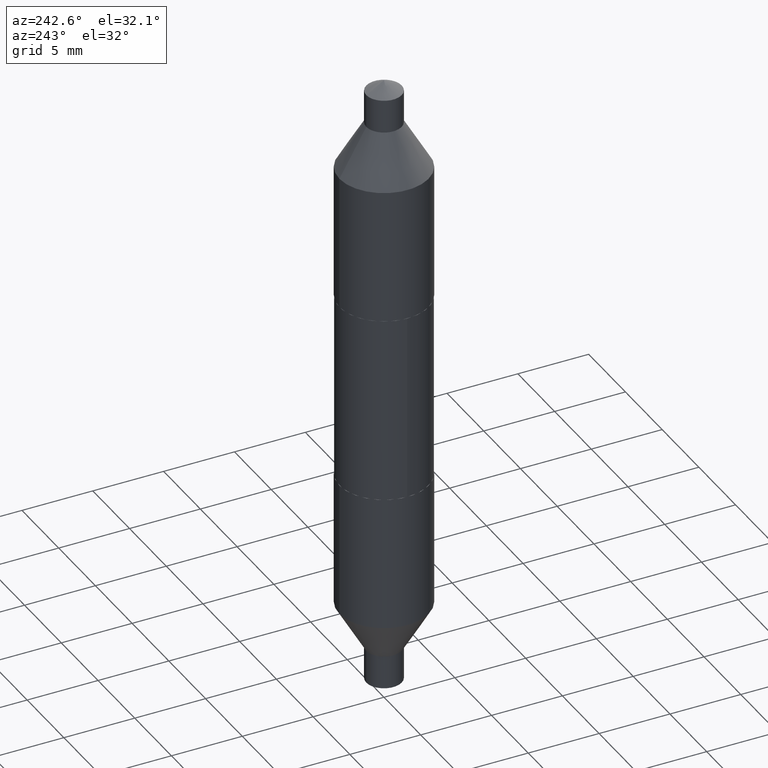
[diagram: clean part render]
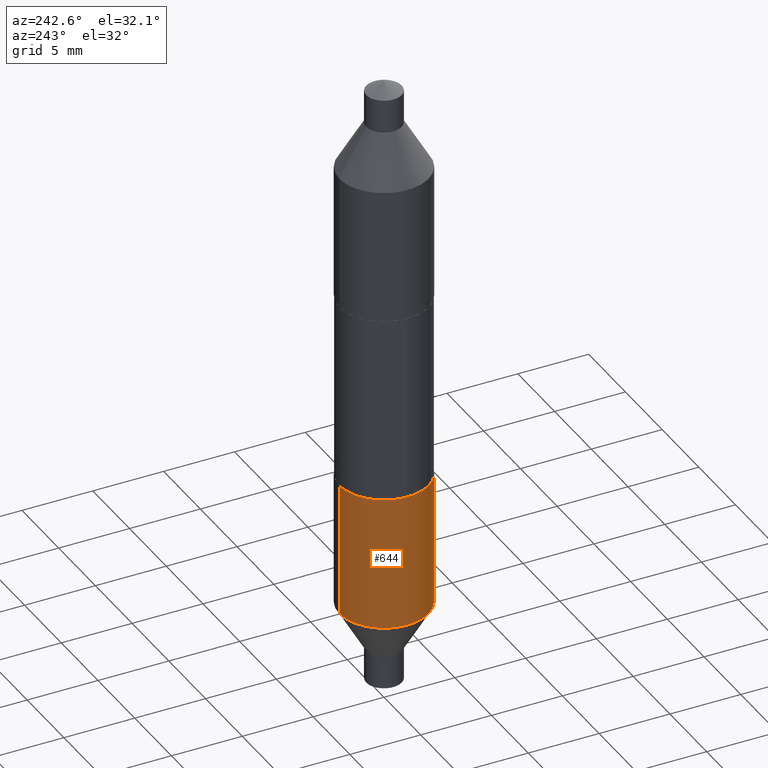
[diagram: same view with one face highlighted and labeled with its STEP entity id]
A machine part, auxiliary view. The second image highlights one B-rep face of the part: STEP entity #644.
In plain terms, the highlighted cylindrical surface (partial cylindrical patch) has radius 3.1496 mm, axis along (-0, 0, 1).
Its self-contained STEP definition (entity closure, byte-faithful):
#7 = AXIS2_PLACEMENT_3D ( 'NONE', #625, #146, #258 ) ;
#12 = DIRECTION ( 'NONE',  ( -2.431786145558266380E-29, 3.511075687629503585E-15, 1.000000000000000000 ) ) ;
#30 = DIRECTION ( 'NONE',  ( -2.431786145558266380E-29, 3.511075687629503191E-15, 1.000000000000000000 ) ) ;
#38 = EDGE_LOOP ( 'NONE', ( #475, #91, #648, #485 ) ) ;
#77 = CARTESIAN_POINT ( 'NONE',  ( 8.810729923425398042E-16, 0.1239999999999990971, -0.2600000000000004530 ) ) ;
#87 = DIRECTION ( 'NONE',  ( -6.982962677686265922E-15, -1.000000000000000000, 3.304654831045475864E-15 ) ) ;
#88 = DIRECTION ( 'NONE',  ( -6.982962677686265922E-15, -1.000000000000000000, 3.580042733632603487E-15 ) ) ;
#91 = ORIENTED_EDGE ( 'NONE', *, *, #225, .T. ) ;
#119 = EDGE_CURVE ( 'NONE', #167, #498, #568, .T. ) ;
#146 = DIRECTION ( 'NONE',  ( -2.431786145558266380E-29, 3.511075687629503191E-15, 1.000000000000000000 ) ) ;
#156 = FACE_OUTER_BOUND ( 'NONE', #38, .T. ) ;
#167 = VERTEX_POINT ( 'NONE', #630 ) ;
#180 = CIRCLE ( 'NONE', #659, 0.1240000000000001379 ) ;
#186 = AXIS2_PLACEMENT_3D ( 'NONE', #627, #30, #88 ) ;
#225 = EDGE_CURVE ( 'NONE', #167, #331, #180, .T. ) ;
#258 = DIRECTION ( 'NONE',  ( -6.982962677686265922E-15, -1.000000000000000000, 3.580042733632601120E-15 ) ) ;
#322 = CARTESIAN_POINT ( 'NONE',  ( -8.658873720330824348E-16, -0.1240000000000023583, -0.6334425995938456344 ) ) ;
#331 = VERTEX_POINT ( 'NONE', #322 ) ;
#336 = CARTESIAN_POINT ( 'NONE',  ( -8.658873720330911123E-16, -0.1240000000000009706, -0.2599999999999995093 ) ) ;
#340 = LINE ( 'NONE', #336, #569 ) ;
#360 = DIRECTION ( 'NONE',  ( -2.431786145558266380E-29, 3.511075687629503191E-15, 1.000000000000000000 ) ) ;
#421 = CIRCLE ( 'NONE', #186, 0.1239999999999999991 ) ;
#465 = DIRECTION ( 'NONE',  ( -2.431786145558266380E-29, 3.511075687629503585E-15, 1.000000000000000000 ) ) ;
#468 = CARTESIAN_POINT ( 'NONE',  ( 1.543954429461713444E-29, -2.218970380258330031E-15, -0.6334425995938459675 ) ) ;
#472 = EDGE_CURVE ( 'NONE', #331, #700, #340, .T. ) ;
#474 = CYLINDRICAL_SURFACE ( 'NONE', #7, 0.1240000000000000685 ) ;
#475 = ORIENTED_EDGE ( 'NONE', *, *, #119, .F. ) ;
#485 = ORIENTED_EDGE ( 'NONE', *, *, #684, .F. ) ;
#498 = VERTEX_POINT ( 'NONE', #77 ) ;
#505 = CARTESIAN_POINT ( 'NONE',  ( 8.810729923425308309E-16, 0.1239999999999991526, -0.2600000000000003975 ) ) ;
#516 = VECTOR ( 'NONE', #465, 39.37007874015748143 ) ;
#522 = CARTESIAN_POINT ( 'NONE',  ( -8.658873720330906192E-16, -0.1240000000000009012, -0.2599999999999995648 ) ) ;
#568 = LINE ( 'NONE', #505, #516 ) ;
#569 = VECTOR ( 'NONE', #12, 39.37007874015748143 ) ;
#625 = CARTESIAN_POINT ( 'NONE',  ( 6.358218896081354143E-30, -9.077851480992177489E-16, -0.2599999999999999534 ) ) ;
#627 = CARTESIAN_POINT ( 'NONE',  ( 6.358218896081355544E-30, -9.077851480992177489E-16, -0.2600000000000000089 ) ) ;
#630 = CARTESIAN_POINT ( 'NONE',  ( 8.810729923425355640E-16, 0.1239999999999979174, -0.6334425995938464116 ) ) ;
#644 = ADVANCED_FACE ( 'NONE', ( #156 ), #474, .T. ) ;
#648 = ORIENTED_EDGE ( 'NONE', *, *, #472, .T. ) ;
#659 = AXIS2_PLACEMENT_3D ( 'NONE', #468, #360, #87 ) ;
#684 = EDGE_CURVE ( 'NONE', #498, #700, #421, .T. ) ;
#700 = VERTEX_POINT ( 'NONE', #522 ) ;